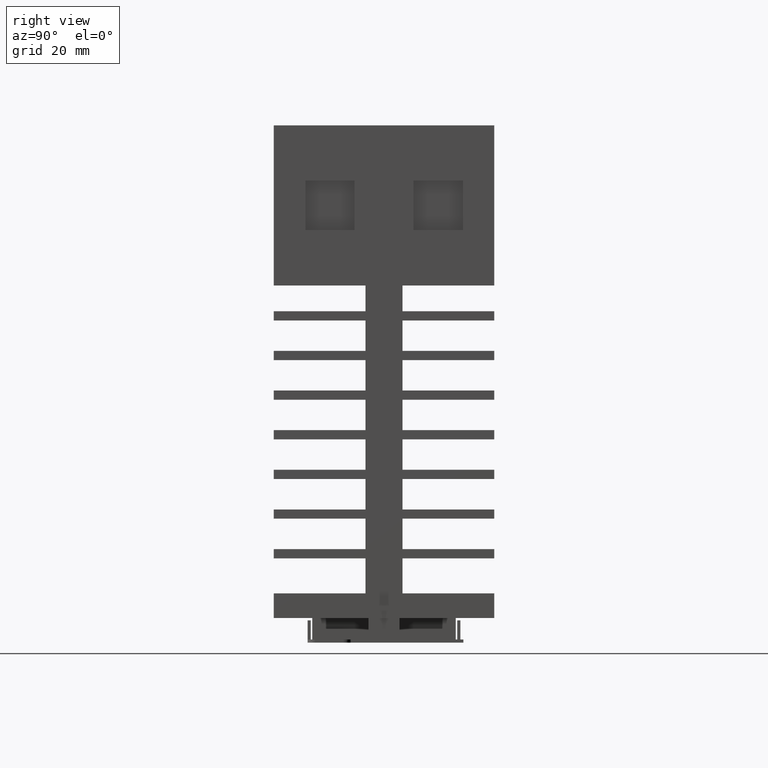
[diagram: clean part render]
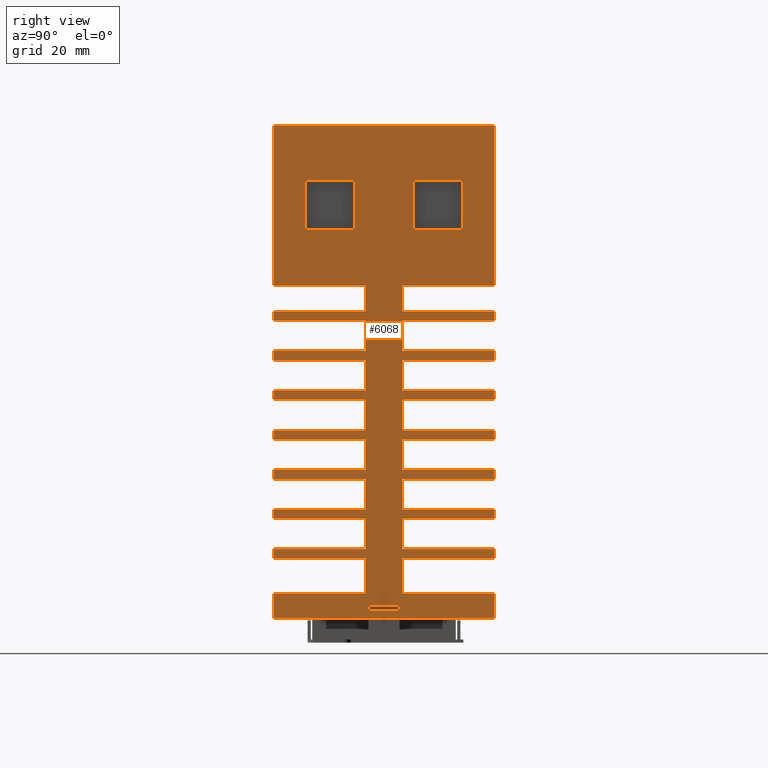
[diagram: same view with one face highlighted and labeled with its STEP entity id]
A machine part, right view. The second image highlights one B-rep face of the part: STEP entity #6068.
In plain terms, the highlighted planar face has unit normal (-1, 0, 0).
Its self-contained STEP definition (entity closure, byte-faithful):
#4 = LINE ( 'NONE', #165, #6877 ) ;
#5 = VECTOR ( 'NONE', #3483, 39.37007874015748100 ) ;
#6 = DIRECTION ( 'NONE',  ( 2.220446049250310400E-016, 1.000000000000000000, -2.220446049250310400E-016 ) ) ;
#12 = EDGE_CURVE ( 'EDGE297', #5225, #6635, #1954, .T. ) ;
#58 = DIRECTION ( 'NONE',  ( -4.930380657631320000E-032, -2.220446049250310400E-016, -1.000000000000000000 ) ) ;
#62 = FACE_BOUND ( 'NONE', #7245, .T. ) ;
#63 = VECTOR ( 'NONE', #5888, 39.37007874015748100 ) ;
#65 = DIRECTION ( 'NONE',  ( 2.220446049250310400E-016, 1.000000000000000000, 0.0000000000000000000 ) ) ;
#84 = DIRECTION ( 'NONE',  ( -2.449212707644750100E-016, -1.000000000000000000, 0.0000000000000000000 ) ) ;
#96 = VERTEX_POINT ( 'NONE', #388 ) ;
#112 = EDGE_CURVE ( 'EDGE343', #6485, #6278, #8281, .T. ) ;
#126 = EDGE_CURVE ( 'EDGE321', #7059, #7209, #7681, .T. ) ;
#141 = LINE ( 'NONE', #422, #5984 ) ;
#144 = CARTESIAN_POINT ( 'NONE',  ( 1.549999999999999800, -0.8950000000000000200, 2.331249999999999800 ) ) ;
#165 = CARTESIAN_POINT ( 'NONE',  ( 1.549999999999999800, -0.8950000000000000200, 0.7218750000000000400 ) ) ;
#208 = VECTOR ( 'NONE', #8085, 39.37007874015748100 ) ;
#248 = CARTESIAN_POINT ( 'NONE',  ( 1.549999999999999800, -0.8950000000000000200, 0.6843749999999999600 ) ) ;
#262 = CARTESIAN_POINT ( 'NONE',  ( 1.549999999999999800, 0.8950000000000000200, 2.690624999999999800 ) ) ;
#267 = FACE_BOUND ( 'NONE', #7262, .T. ) ;
#268 = LINE ( 'NONE', #5239, #63 ) ;
#317 = DIRECTION ( 'NONE',  ( 0.0000000000000000000, 0.0000000000000000000, 1.000000000000000000 ) ) ;
#354 = DIRECTION ( 'NONE',  ( -2.220446049250310400E-016, -1.000000000000000000, 4.440892098500630100E-016 ) ) ;
#370 = VECTOR ( 'NONE', #8495, 39.37007874015748100 ) ;
#388 = CARTESIAN_POINT ( 'NONE',  ( 1.549999999999999800, -0.1500000000000004100, 1.649999999999999900 ) ) ;
#392 = DIRECTION ( 'NONE',  ( -2.220446049250310400E-016, -1.000000000000000000, 2.220446049250310400E-016 ) ) ;
#422 = CARTESIAN_POINT ( 'NONE',  ( 1.549999999999999800, -1.110223024625157500E-016, 1.403125000000000200 ) ) ;
#444 = CARTESIAN_POINT ( 'NONE',  ( 1.549999999999999800, 0.0000000000000000000, 1.649999999999999900 ) ) ;
#456 = CARTESIAN_POINT ( 'NONE',  ( 1.549999999999999800, 0.1499999999999996100, 2.900000000000000400 ) ) ;
#459 = CARTESIAN_POINT ( 'NONE',  ( 1.549999999999999800, -2.220446049250311400E-016, 0.7593750000000000200 ) ) ;
#493 = CARTESIAN_POINT ( 'NONE',  ( 1.549999999999999800, 0.8950000000000000200, 0.7593750000000000200 ) ) ;
#500 = EDGE_CURVE ( 'EDGE292', #5004, #5181, #5117, .T. ) ;
#626 = VERTEX_POINT ( 'NONE', #3119 ) ;
#632 = LINE ( 'NONE', #7383, #3937 ) ;
#638 = CARTESIAN_POINT ( 'NONE',  ( 1.549999999999999800, -0.1500000000000004100, 1.725000000000000100 ) ) ;
#651 = ORIENTED_EDGE ( 'NONE', *, *, #5494, .F. ) ;
#664 = EDGE_LOOP ( 'NONE', ( #4163, #6910, #7869, #7721, #8346, #1660, #7446, #1229, #3607, #2897, #2572, #5443, #4913, #4035, #6808, #7676, #6307, #8243, #1549, #7714, #1174, #3519, #2775, #2521, #5317, #4819, #3988, #6693, #7483, #5534, #8167, #1444, #7604, #1014, #3386, #2589, #2427, #5130, #7049, #3787, #6563, #651, #5408, #8059, #1209, #8011, #940, #3177, #2453, #2315, #5033, #4591, #3677, #6433, #7169, #5307, #7979, #1021, #8338, #845, #3072, #2246, #2229, #4919, #4367, #3591, #6357, #6966 ) ) ;
#668 = VECTOR ( 'NONE', #7677, 39.37007874015748100 ) ;
#682 = EDGE_CURVE ( 'EDGE305', #6556, #5697, #2391, .T. ) ;
#725 = CARTESIAN_POINT ( 'NONE',  ( 1.549999999999999800, -0.2400000000000004100, 3.350000000000000100 ) ) ;
#738 = CARTESIAN_POINT ( 'NONE',  ( 1.549999999999999800, -0.1500000000000004100, 1.649999999999999900 ) ) ;
#745 = LINE ( 'NONE', #459, #4271 ) ;
#762 = CARTESIAN_POINT ( 'NONE',  ( 1.549999999999999800, -0.1500000000000004100, 1.649999999999999900 ) ) ;
#774 = CARTESIAN_POINT ( 'NONE',  ( 1.549999999999999800, -1.353036877416862300E-016, 0.2599999999999996200 ) ) ;
#784 = CARTESIAN_POINT ( 'NONE',  ( 1.549999999999999800, 0.0000000000000000000, 2.046875000000000400 ) ) ;
#816 = VERTEX_POINT ( 'NONE', #456 ) ;
#818 = CARTESIAN_POINT ( 'NONE',  ( 1.549999999999999800, 1.110223024625157500E-016, 2.368749999999999900 ) ) ;
#844 = CARTESIAN_POINT ( 'NONE',  ( 1.549999999999999800, -0.1250000000000004200, 0.2999999999999999900 ) ) ;
#845 = ORIENTED_EDGE ( 'NONE', *, *, #2277, .T. ) ;
#855 = DIRECTION ( 'NONE',  ( 0.0000000000000000000, 0.0000000000000000000, -1.000000000000000000 ) ) ;
#857 = VECTOR ( 'NONE', #84, 39.37007874015748100 ) ;
#883 = LINE ( 'NONE', #8288, #4198 ) ;
#914 = DIRECTION ( 'NONE',  ( 0.0000000000000000000, 0.0000000000000000000, -1.000000000000000000 ) ) ;
#923 = DIRECTION ( 'NONE',  ( 0.0000000000000000000, 0.0000000000000000000, -1.000000000000000000 ) ) ;
#940 = ORIENTED_EDGE ( 'NONE', *, *, #1565, .F. ) ;
#948 = CARTESIAN_POINT ( 'NONE',  ( 1.549999999999999800, -0.8950000000000000200, 1.081250000000000000 ) ) ;
#971 = CARTESIAN_POINT ( 'NONE',  ( 1.549999999999999800, 0.1499999999999996100, 1.649999999999999900 ) ) ;
#1001 = LINE ( 'NONE', #3204, #5707 ) ;
#1002 = VECTOR ( 'NONE', #3598, 39.37007874015748100 ) ;
#1014 = ORIENTED_EDGE ( 'NONE', *, *, #1499, .F. ) ;
#1021 = ORIENTED_EDGE ( 'NONE', *, *, #7549, .T. ) ;
#1030 = CARTESIAN_POINT ( 'NONE',  ( 1.549999999999999800, 0.1249999999999996300, 1.305625000000000000 ) ) ;
#1046 = EDGE_CURVE ( 'EDGE333', #6802, #7822, #1970, .T. ) ;
#1106 = DIRECTION ( 'NONE',  ( 2.220446049250310400E-016, 1.000000000000000000, -2.220446049250310400E-016 ) ) ;
#1108 = EDGE_CURVE ( 'EDGE348', #8406, #2356, #1126, .T. ) ;
#1110 = CARTESIAN_POINT ( 'NONE',  ( 1.549999999999999800, -0.8950000000000000200, 2.368749999999999900 ) ) ;
#1126 = LINE ( 'NONE', #7371, #4805 ) ;
#1130 = VECTOR ( 'NONE', #3567, 39.37007874015748100 ) ;
#1148 = CARTESIAN_POINT ( 'NONE',  ( 1.549999999999999800, 0.1249999999999996300, 0.2999999999999999900 ) ) ;
#1149 = VECTOR ( 'NONE', #2823, 39.37007874015748100 ) ;
#1162 = CARTESIAN_POINT ( 'NONE',  ( 1.549999999999999800, -0.8950000000000000200, 0.2999999999999999900 ) ) ;
#1167 = CARTESIAN_POINT ( 'NONE',  ( 1.549999999999999800, 0.0000000000000000000, 1.725000000000000100 ) ) ;
#1174 = ORIENTED_EDGE ( 'NONE', *, *, #8251, .F. ) ;
#1187 = LINE ( 'NONE', #2591, #4534 ) ;
#1192 = DIRECTION ( 'NONE',  ( 0.0000000000000000000, 0.0000000000000000000, -1.000000000000000000 ) ) ;
#1209 = ORIENTED_EDGE ( 'NONE', *, *, #3093, .F. ) ;
#1229 = ORIENTED_EDGE ( 'NONE', *, *, #12, .T. ) ;
#1270 = DIRECTION ( 'NONE',  ( 2.220446049250310400E-016, 1.000000000000000000, -4.440892098500630100E-016 ) ) ;
#1332 = ORIENTED_EDGE ( 'NONE', *, *, #2796, .T. ) ;
#1346 = VECTOR ( 'NONE', #6233, 39.37007874015748100 ) ;
#1360 = CARTESIAN_POINT ( 'NONE',  ( 1.549999999999999800, -0.1500000000000004100, 1.081250000000000000 ) ) ;
#1393 = CARTESIAN_POINT ( 'NONE',  ( 1.549999999999999800, -0.1500000000000004100, 0.4000000000000000200 ) ) ;
#1407 = VECTOR ( 'NONE', #2072, 39.37007874015748100 ) ;
#1416 = VECTOR ( 'NONE', #6170, 39.37007874015748100 ) ;
#1438 = EDGE_CURVE ( 'EDGE350', #5149, #7944, #8006, .T. ) ;
#1442 = DIRECTION ( 'NONE',  ( 0.0000000000000000000, 0.0000000000000000000, -1.000000000000000000 ) ) ;
#1444 = ORIENTED_EDGE ( 'NONE', *, *, #126, .F. ) ;
#1447 = VECTOR ( 'NONE', #1961, 39.37007874015748100 ) ;
#1454 = EDGE_CURVE ( 'EDGE246', #3379, #3501, #6825, .T. ) ;
#1483 = CARTESIAN_POINT ( 'NONE',  ( 1.549999999999999800, -3.796279696849370300E-016, 4.200000000000000200 ) ) ;
#1499 = EDGE_CURVE ( 'EDGE323', #7415, #8299, #5286, .T. ) ;
#1502 = CARTESIAN_POINT ( 'NONE',  ( 1.549999999999999800, -0.1500000000000004100, 1.006250000000000100 ) ) ;
#1507 = EDGE_CURVE ( 'EDGE316', #7930, #6228, #5180, .T. ) ;
#1517 = VECTOR ( 'NONE', #317, 39.37007874015748100 ) ;
#1541 = DIRECTION ( 'NONE',  ( -2.220446049250310400E-016, -1.000000000000000000, 2.220446049250310400E-016 ) ) ;
#1549 = ORIENTED_EDGE ( 'NONE', *, *, #7529, .F. ) ;
#1552 = VERTEX_POINT ( 'NONE', #6691 ) ;
#1565 = EDGE_CURVE ( 'EDGE336', #4721, #6555, #4307, .T. ) ;
#1575 = DIRECTION ( 'NONE',  ( 0.0000000000000000000, 0.0000000000000000000, -1.000000000000000000 ) ) ;
#1590 = CARTESIAN_POINT ( 'NONE',  ( 1.549999999999999800, -0.1500000000000004100, 0.6843749999999999600 ) ) ;
#1605 = LINE ( 'NONE', #8464, #1804 ) ;
#1606 = EDGE_CURVE ( 'EDGE354', #5551, #1799, #141, .T. ) ;
#1608 = CARTESIAN_POINT ( 'NONE',  ( 1.549999999999999800, -0.6400000000000000100, 3.350000000000000100 ) ) ;
#1615 = VECTOR ( 'NONE', #6805, 39.37007874015748100 ) ;
#1616 = CARTESIAN_POINT ( 'NONE',  ( 1.549999999999999800, -0.09375000000000040200, 0.2999999999999999900 ) ) ;
#1624 = LINE ( 'NONE', #1899, #3388 ) ;
#1633 = CARTESIAN_POINT ( 'NONE',  ( 1.549999999999999800, 1.110223024625157500E-016, 2.690624999999999800 ) ) ;
#1637 = LINE ( 'NONE', #5576, #3408 ) ;
#1639 = VECTOR ( 'NONE', #1709, 39.37007874015748100 ) ;
#1647 = VECTOR ( 'NONE', #3678, 39.37007874015748100 ) ;
#1649 = CARTESIAN_POINT ( 'NONE',  ( 1.549999999999999800, -0.8950000000000000200, 2.046875000000000400 ) ) ;
#1660 = ORIENTED_EDGE ( 'NONE', *, *, #2496, .T. ) ;
#1664 = CARTESIAN_POINT ( 'NONE',  ( 1.549999999999999800, 0.1499999999999996100, 2.293750000000000200 ) ) ;
#1676 = CARTESIAN_POINT ( 'NONE',  ( 1.549999999999999800, 0.1499999999999996100, 0.7593750000000000200 ) ) ;
#1702 = DIRECTION ( 'NONE',  ( 2.220446049250310400E-016, 1.000000000000000000, 0.0000000000000000000 ) ) ;
#1709 = DIRECTION ( 'NONE',  ( -2.220446049250310400E-016, -1.000000000000000000, 2.220446049250310400E-016 ) ) ;
#1762 = ORIENTED_EDGE ( 'NONE', *, *, #7561, .T. ) ;
#1776 = EDGE_CURVE ( 'EDGE339', #5071, #6039, #2525, .T. ) ;
#1788 = DIRECTION ( 'NONE',  ( 2.220446049250310400E-016, 1.000000000000000000, -2.220446049250310400E-016 ) ) ;
#1799 = VERTEX_POINT ( 'NONE', #7224 ) ;
#1804 = VECTOR ( 'NONE', #3864, 39.37007874015748100 ) ;
#1818 = DIRECTION ( 'NONE',  ( 0.0000000000000000000, 0.0000000000000000000, -1.000000000000000000 ) ) ;
#1819 = DIRECTION ( 'NONE',  ( 0.0000000000000000000, 0.0000000000000000000, -1.000000000000000000 ) ) ;
#1845 = CARTESIAN_POINT ( 'NONE',  ( 1.549999999999999800, 0.2399999999999996300, 3.750000000000000000 ) ) ;
#1849 = CARTESIAN_POINT ( 'NONE',  ( 1.549999999999999800, -0.1500000000000004100, 1.649999999999999900 ) ) ;
#1878 = VECTOR ( 'NONE', #8205, 39.37007874015748100 ) ;
#1899 = CARTESIAN_POINT ( 'NONE',  ( 1.549999999999999800, -0.2200000000000000000, 3.750000000000000000 ) ) ;
#1904 = VECTOR ( 'NONE', #7215, 39.37007874015748100 ) ;
#1907 = CARTESIAN_POINT ( 'NONE',  ( 1.549999999999999800, 0.8950000000000000200, 1.649999999999999900 ) ) ;
#1915 = VECTOR ( 'NONE', #5950, 39.37007874015748100 ) ;
#1917 = VECTOR ( 'NONE', #5088, 39.37007874015748100 ) ;
#1944 = VECTOR ( 'NONE', #5346, 39.37007874015748100 ) ;
#1946 = VECTOR ( 'NONE', #3738, 39.37007874015748100 ) ;
#1948 = LINE ( 'NONE', #2815, #5 ) ;
#1950 = DIRECTION ( 'NONE',  ( -2.449212707644750100E-016, -1.000000000000000000, 0.0000000000000000000 ) ) ;
#1954 = LINE ( 'NONE', #5266, #1944 ) ;
#1959 = CARTESIAN_POINT ( 'NONE',  ( 1.549999999999999800, -0.09375000000000040200, 0.2800000000000000300 ) ) ;
#1961 = DIRECTION ( 'NONE',  ( 2.449212707644750100E-016, 1.000000000000000000, 0.0000000000000000000 ) ) ;
#1970 = LINE ( 'NONE', #7791, #4917 ) ;
#1994 = EDGE_CURVE ( 'EDGE302', #6873, #4859, #3965, .T. ) ;
#2010 = VECTOR ( 'NONE', #8436, 39.37007874015748100 ) ;
#2051 = VERTEX_POINT ( 'NONE', #1608 ) ;
#2056 = CARTESIAN_POINT ( 'NONE',  ( 1.549999999999999800, 0.1499999999999996100, 1.649999999999999900 ) ) ;
#2072 = DIRECTION ( 'NONE',  ( -4.930380657631320000E-032, -2.220446049250310400E-016, -1.000000000000000000 ) ) ;
#2129 = CARTESIAN_POINT ( 'NONE',  ( 1.549999999999999800, -0.8950000000000000200, 1.043750000000000000 ) ) ;
#2144 = EDGE_CURVE ( 'EDGE344', #7058, #6278, #3358, .T. ) ;
#2145 = LINE ( 'NONE', #5568, #5722 ) ;
#2164 = LINE ( 'NONE', #8077, #7062 ) ;
#2165 = LINE ( 'NONE', #2129, #208 ) ;
#2166 = CARTESIAN_POINT ( 'NONE',  ( 1.549999999999999800, 0.8950000000000000200, 0.2999999999999999900 ) ) ;
#2169 = CARTESIAN_POINT ( 'NONE',  ( 1.549999999999999800, -2.220446049250311400E-016, 0.6843749999999999600 ) ) ;
#2220 = VERTEX_POINT ( 'NONE', #5352 ) ;
#2221 = EDGE_CURVE ( 'EDGE313', #7438, #8246, #6354, .T. ) ;
#2229 = ORIENTED_EDGE ( 'NONE', *, *, #5283, .F. ) ;
#2232 = VECTOR ( 'NONE', #1575, 39.37007874015748100 ) ;
#2239 = VERTEX_POINT ( 'NONE', #4720 ) ;
#2240 = CARTESIAN_POINT ( 'NONE',  ( 1.549999999999999800, -0.1500000000000004100, 1.649999999999999900 ) ) ;
#2246 = ORIENTED_EDGE ( 'NONE', *, *, #2592, .T. ) ;
#2254 = DIRECTION ( 'NONE',  ( -4.930380657631320000E-032, -2.220446049250310400E-016, -1.000000000000000000 ) ) ;
#2277 = EDGE_CURVE ( 'EDGE349', #8406, #7944, #4584, .T. ) ;
#2285 = CARTESIAN_POINT ( 'NONE',  ( 1.549999999999999800, -1.110223024625157500E-016, 1.081250000000000000 ) ) ;
#2301 = EDGE_CURVE ( 'EDGE300', #5625, #7803, #6166, .T. ) ;
#2303 = CARTESIAN_POINT ( 'NONE',  ( 1.549999999999999800, 0.8950000000000000200, 4.200000000000000200 ) ) ;
#2315 = ORIENTED_EDGE ( 'NONE', *, *, #1776, .T. ) ;
#2319 = EDGE_CURVE ( 'EDGE245', #2951, #2943, #2582, .T. ) ;
#2328 = LINE ( 'NONE', #3234, #370 ) ;
#2340 = VECTOR ( 'NONE', #6650, 39.37007874015748100 ) ;
#2356 = VERTEX_POINT ( 'NONE', #2726 ) ;
#2377 = EDGE_CURVE ( 'EDGE303', #3583, #6873, #632, .T. ) ;
#2391 = LINE ( 'NONE', #2450, #2468 ) ;
#2411 = CARTESIAN_POINT ( 'NONE',  ( 1.549999999999999800, 0.1499999999999996100, 2.690624999999999800 ) ) ;
#2421 = DIRECTION ( 'NONE',  ( -4.930380657631320000E-032, -2.220446049250310400E-016, -1.000000000000000000 ) ) ;
#2427 = ORIENTED_EDGE ( 'NONE', *, *, #3025, .F. ) ;
#2450 = CARTESIAN_POINT ( 'NONE',  ( 1.549999999999999800, 0.8950000000000000200, 0.7218750000000000400 ) ) ;
#2453 = ORIENTED_EDGE ( 'NONE', *, *, #7026, .F. ) ;
#2458 = VECTOR ( 'NONE', #1192, 39.37007874015748100 ) ;
#2461 = CARTESIAN_POINT ( 'NONE',  ( 1.549999999999999800, -0.2400000000000004100, 2.940624999999999800 ) ) ;
#2468 = VECTOR ( 'NONE', #2421, 39.37007874015748100 ) ;
#2478 = EDGE_CURVE ( 'EDGE225', #2239, #2220, #2164, .T. ) ;
#2496 = EDGE_CURVE ( 'EDGE295', #4868, #5604, #4, .T. ) ;
#2521 = ORIENTED_EDGE ( 'NONE', *, *, #2221, .F. ) ;
#2525 = LINE ( 'NONE', #7310, #3969 ) ;
#2554 = EDGE_CURVE ( 'EDGE357', #7853, #4882, #7746, .T. ) ;
#2560 = CARTESIAN_POINT ( 'NONE',  ( 1.549999999999999800, 0.1499999999999996100, 2.368749999999999900 ) ) ;
#2562 = VERTEX_POINT ( 'NONE', #7513 ) ;
#2563 = VECTOR ( 'NONE', #1818, 39.37007874015748100 ) ;
#2572 = ORIENTED_EDGE ( 'NONE', *, *, #2301, .F. ) ;
#2573 = CARTESIAN_POINT ( 'NONE',  ( 1.549999999999999800, -1.110223024625157500E-016, 1.403125000000000200 ) ) ;
#2582 = LINE ( 'NONE', #774, #4166 ) ;
#2589 = ORIENTED_EDGE ( 'NONE', *, *, #7601, .F. ) ;
#2591 = CARTESIAN_POINT ( 'NONE',  ( 1.549999999999999800, -0.1500000000000004100, 1.649999999999999900 ) ) ;
#2592 = EDGE_CURVE ( 'EDGE351', #5149, #6155, #1637, .T. ) ;
#2600 = CARTESIAN_POINT ( 'NONE',  ( 1.549999999999999800, 1.110223024625157500E-016, 2.368749999999999900 ) ) ;
#2630 = CARTESIAN_POINT ( 'NONE',  ( 1.549999999999999800, -0.8950000000000000200, 0.4000000000000000200 ) ) ;
#2673 = VERTEX_POINT ( 'NONE', #7703 ) ;
#2675 = LINE ( 'NONE', #2981, #4274 ) ;
#2684 = VECTOR ( 'NONE', #914, 39.37007874015748100 ) ;
#2692 = DIRECTION ( 'NONE',  ( 0.0000000000000000000, 0.0000000000000000000, -1.000000000000000000 ) ) ;
#2701 = DIRECTION ( 'NONE',  ( -2.220446049250310400E-016, -1.000000000000000000, 0.0000000000000000000 ) ) ;
#2706 = VERTEX_POINT ( 'NONE', #3061 ) ;
#2714 = EDGE_CURVE ( 'EDGE241', #2673, #3467, #8520, .T. ) ;
#2724 = ORIENTED_EDGE ( 'NONE', *, *, #7381, .T. ) ;
#2726 = CARTESIAN_POINT ( 'NONE',  ( 1.549999999999999800, -0.8950000000000000200, 1.971875000000000000 ) ) ;
#2738 = LINE ( 'NONE', #3970, #6312 ) ;
#2745 = VERTEX_POINT ( 'NONE', #1845 ) ;
#2747 = LINE ( 'NONE', #3843, #6135 ) ;
#2775 = ORIENTED_EDGE ( 'NONE', *, *, #6716, .F. ) ;
#2777 = VECTOR ( 'NONE', #58, 39.37007874015748100 ) ;
#2796 = EDGE_CURVE ( 'EDGE229', #3066, #1552, #1624, .T. ) ;
#2815 = CARTESIAN_POINT ( 'NONE',  ( 1.549999999999999800, 0.2200000000000000000, 3.750000000000000000 ) ) ;
#2819 = EDGE_CURVE ( 'EDGE237', #3264, #2951, #7440, .T. ) ;
#2821 = DIRECTION ( 'NONE',  ( 0.0000000000000000000, 0.0000000000000000000, -1.000000000000000000 ) ) ;
#2823 = DIRECTION ( 'NONE',  ( -2.220446049250310400E-016, -1.000000000000000000, 2.220446049250310400E-016 ) ) ;
#2833 = LINE ( 'NONE', #784, #4425 ) ;
#2843 = ORIENTED_EDGE ( 'NONE', *, *, #7548, .T. ) ;
#2856 = VERTEX_POINT ( 'NONE', #5334 ) ;
#2867 = VERTEX_POINT ( 'NONE', #725 ) ;
#2880 = LINE ( 'NONE', #7522, #8156 ) ;
#2890 = LINE ( 'NONE', #2240, #2684 ) ;
#2897 = ORIENTED_EDGE ( 'NONE', *, *, #4064, .T. ) ;
#2917 = CARTESIAN_POINT ( 'NONE',  ( 1.549999999999999800, -1.110223024625157500E-016, 1.328125000000000200 ) ) ;
#2941 = CARTESIAN_POINT ( 'NONE',  ( 1.549999999999999800, 1.110223024625157500E-016, 2.293750000000000200 ) ) ;
#2943 = VERTEX_POINT ( 'NONE', #6769 ) ;
#2951 = VERTEX_POINT ( 'NONE', #7397 ) ;
#2971 = CARTESIAN_POINT ( 'NONE',  ( 1.549999999999999800, 0.8950000000000000200, 1.725000000000000100 ) ) ;
#2981 = CARTESIAN_POINT ( 'NONE',  ( 1.549999999999999800, 1.110223024625157500E-016, 2.615625000000000500 ) ) ;
#3011 = LINE ( 'NONE', #762, #4837 ) ;
#3025 = EDGE_CURVE ( 'EDGE326', #7625, #6132, #3381, .T. ) ;
#3061 = CARTESIAN_POINT ( 'NONE',  ( 1.549999999999999800, -0.1500000000000004100, 2.615625000000000500 ) ) ;
#3066 = VERTEX_POINT ( 'NONE', #6141 ) ;
#3072 = ORIENTED_EDGE ( 'NONE', *, *, #1438, .F. ) ;
#3073 = CARTESIAN_POINT ( 'NONE',  ( 1.549999999999999800, 0.0000000000000000000, 2.046875000000000400 ) ) ;
#3084 = ORIENTED_EDGE ( 'NONE', *, *, #2478, .T. ) ;
#3085 = VERTEX_POINT ( 'NONE', #844 ) ;
#3093 = EDGE_CURVE ( 'EDGE334', #5787, #6802, #8423, .T. ) ;
#3119 = CARTESIAN_POINT ( 'NONE',  ( 1.549999999999999800, -0.1500000000000004100, 2.046875000000000400 ) ) ;
#3158 = CARTESIAN_POINT ( 'NONE',  ( 1.549999999999999800, -0.2200000000000000000, 3.350000000000000100 ) ) ;
#3159 = EDGE_CURVE ( 'EDGE301', #4859, #5625, #6528, .T. ) ;
#3162 = VECTOR ( 'NONE', #5649, 39.37007874015748100 ) ;
#3177 = ORIENTED_EDGE ( 'NONE', *, *, #4076, .T. ) ;
#3196 = DIRECTION ( 'NONE',  ( -2.220446049250310400E-016, -1.000000000000000000, 0.0000000000000000000 ) ) ;
#3204 = CARTESIAN_POINT ( 'NONE',  ( 1.549999999999999800, 1.110223024625157500E-016, 2.690624999999999800 ) ) ;
#3218 = VERTEX_POINT ( 'NONE', #6241 ) ;
#3234 = CARTESIAN_POINT ( 'NONE',  ( 1.549999999999999800, 0.6400000000000000100, 2.940624999999999800 ) ) ;
#3236 = LINE ( 'NONE', #1849, #6817 ) ;
#3264 = VERTEX_POINT ( 'NONE', #1616 ) ;
#3289 = CARTESIAN_POINT ( 'NONE',  ( 1.549999999999999800, 0.8950000000000000200, 0.4000000000000000200 ) ) ;
#3307 = VECTOR ( 'NONE', #4877, 39.37007874015748100 ) ;
#3358 = LINE ( 'NONE', #4640, #5442 ) ;
#3368 = VECTOR ( 'NONE', #3196, 39.37007874015748100 ) ;
#3371 = DIRECTION ( 'NONE',  ( -2.449212707644750100E-016, -1.000000000000000000, 0.0000000000000000000 ) ) ;
#3373 = CARTESIAN_POINT ( 'NONE',  ( 1.549999999999999800, 0.8950000000000000200, 2.900000000000000400 ) ) ;
#3374 = CARTESIAN_POINT ( 'NONE',  ( 1.549999999999999800, -3.796279696849370300E-016, 0.2000000000000000100 ) ) ;
#3379 = VERTEX_POINT ( 'NONE', #1148 ) ;
#3381 = LINE ( 'NONE', #818, #1615 ) ;
#3386 = ORIENTED_EDGE ( 'NONE', *, *, #5704, .F. ) ;
#3388 = VECTOR ( 'NONE', #5931, 39.37007874015748100 ) ;
#3390 = LINE ( 'NONE', #2056, #6956 ) ;
#3408 = VECTOR ( 'NONE', #8186, 39.37007874015748100 ) ;
#3444 = EDGE_CURVE ( 'EDGE290', #4565, #4882, #2738, .T. ) ;
#3453 = AXIS2_PLACEMENT_3D ( 'NONE', #7978, #4036, #65 ) ;
#3467 = VERTEX_POINT ( 'NONE', #7914 ) ;
#3483 = DIRECTION ( 'NONE',  ( 2.220446049250310400E-016, 1.000000000000000000, 0.0000000000000000000 ) ) ;
#3501 = VERTEX_POINT ( 'NONE', #7975 ) ;
#3519 = ORIENTED_EDGE ( 'NONE', *, *, #5672, .F. ) ;
#3537 = EDGE_CURVE ( 'EDGE322', #8299, #7059, #2833, .T. ) ;
#3546 = VECTOR ( 'NONE', #8214, 39.37007874015748100 ) ;
#3558 = FACE_BOUND ( 'NONE', #7068, .T. ) ;
#3559 = VECTOR ( 'NONE', #5177, 39.37007874015748100 ) ;
#3567 = DIRECTION ( 'NONE',  ( 2.220446049250310400E-016, 1.000000000000000000, -2.220446049250310400E-016 ) ) ;
#3583 = VERTEX_POINT ( 'NONE', #4786 ) ;
#3589 = CARTESIAN_POINT ( 'NONE',  ( 1.549999999999999800, 0.1499999999999996100, 1.649999999999999900 ) ) ;
#3591 = ORIENTED_EDGE ( 'NONE', *, *, #5332, .T. ) ;
#3598 = DIRECTION ( 'NONE',  ( 0.0000000000000000000, 0.0000000000000000000, 1.000000000000000000 ) ) ;
#3607 = ORIENTED_EDGE ( 'NONE', *, *, #6591, .F. ) ;
#3636 = LINE ( 'NONE', #2917, #1878 ) ;
#3657 = CARTESIAN_POINT ( 'NONE',  ( 1.549999999999999800, 0.8950000000000000200, 2.615625000000000500 ) ) ;
#3670 = LINE ( 'NONE', #7857, #1915 ) ;
#3677 = ORIENTED_EDGE ( 'NONE', *, *, #7099, .F. ) ;
#3678 = DIRECTION ( 'NONE',  ( 0.0000000000000000000, 0.0000000000000000000, 1.000000000000000000 ) ) ;
#3689 = VERTEX_POINT ( 'NONE', #4781 ) ;
#3701 = DIRECTION ( 'NONE',  ( 2.449212707644750100E-016, 1.000000000000000000, 0.0000000000000000000 ) ) ;
#3716 = CARTESIAN_POINT ( 'NONE',  ( 1.549999999999999800, 0.1499999999999996100, 0.4000000000000000200 ) ) ;
#3718 = ORIENTED_EDGE ( 'NONE', *, *, #5379, .T. ) ;
#3732 = VECTOR ( 'NONE', #3701, 39.37007874015748100 ) ;
#3738 = DIRECTION ( 'NONE',  ( 2.220446049250310400E-016, 1.000000000000000000, -2.220446049250310400E-016 ) ) ;
#3766 = LINE ( 'NONE', #7159, #3559 ) ;
#3786 = DIRECTION ( 'NONE',  ( -4.930380657631320000E-032, -2.220446049250310400E-016, -1.000000000000000000 ) ) ;
#3787 = ORIENTED_EDGE ( 'NONE', *, *, #5082, .F. ) ;
#3831 = CARTESIAN_POINT ( 'NONE',  ( 1.549999999999999800, -1.110223024625157500E-016, 1.006250000000000100 ) ) ;
#3843 = CARTESIAN_POINT ( 'NONE',  ( 1.549999999999999800, 0.1499999999999996100, 1.649999999999999900 ) ) ;
#3864 = DIRECTION ( 'NONE',  ( -9.860761315262649800E-032, -4.440892098500630100E-016, -1.000000000000000000 ) ) ;
#3901 = CARTESIAN_POINT ( 'NONE',  ( 1.549999999999999800, 0.8950000000000000200, 2.046875000000000400 ) ) ;
#3919 = DIRECTION ( 'NONE',  ( -2.220446049250310400E-016, -1.000000000000000000, 2.220446049250310400E-016 ) ) ;
#3924 = CARTESIAN_POINT ( 'NONE',  ( 1.549999999999999800, -3.796279696849370300E-016, 0.4000000000000000200 ) ) ;
#3936 = LINE ( 'NONE', #3073, #1946 ) ;
#3937 = VECTOR ( 'NONE', #1442, 39.37007874015748100 ) ;
#3957 = CARTESIAN_POINT ( 'NONE',  ( 1.549999999999999800, -1.110223024625157500E-016, 1.006250000000000100 ) ) ;
#3965 = LINE ( 'NONE', #3924, #3732 ) ;
#3969 = VECTOR ( 'NONE', #7203, 39.37007874015748100 ) ;
#3970 = CARTESIAN_POINT ( 'NONE',  ( 1.549999999999999800, -1.110223024625157500E-016, 1.081250000000000000 ) ) ;
#3981 = CARTESIAN_POINT ( 'NONE',  ( 1.549999999999999800, -0.1500000000000004100, 1.649999999999999900 ) ) ;
#3988 = ORIENTED_EDGE ( 'NONE', *, *, #1507, .F. ) ;
#3999 = PLANE ( 'NONE',  #3453 ) ;
#4013 = LINE ( 'NONE', #8147, #2232 ) ;
#4032 = CARTESIAN_POINT ( 'NONE',  ( 1.549999999999999800, 0.8950000000000000200, 1.043750000000000000 ) ) ;
#4035 = ORIENTED_EDGE ( 'NONE', *, *, #2377, .F. ) ;
#4036 = DIRECTION ( 'NONE',  ( -1.000000000000000000, 2.220446049250310400E-016, 0.0000000000000000000 ) ) ;
#4064 = EDGE_CURVE ( 'EDGE299', #5425, #7803, #4095, .T. ) ;
#4076 = EDGE_CURVE ( 'EDGE337', #4721, #3218, #3236, .T. ) ;
#4089 = LINE ( 'NONE', #3981, #7592 ) ;
#4095 = LINE ( 'NONE', #1162, #5883 ) ;
#4148 = DIRECTION ( 'NONE',  ( -2.220446049250310400E-016, -1.000000000000000000, 0.0000000000000000000 ) ) ;
#4163 = ORIENTED_EDGE ( 'NONE', *, *, #3444, .F. ) ;
#4166 = VECTOR ( 'NONE', #2701, 39.37007874015748100 ) ;
#4171 = EDGE_CURVE ( 'EDGE341', #2706, #3689, #4089, .T. ) ;
#4198 = VECTOR ( 'NONE', #1702, 39.37007874015748100 ) ;
#4212 = VECTOR ( 'NONE', #3371, 39.37007874015748100 ) ;
#4216 = CARTESIAN_POINT ( 'NONE',  ( 1.549999999999999800, -3.796279696849370300E-016, 2.900000000000000400 ) ) ;
#4219 = CARTESIAN_POINT ( 'NONE',  ( 1.549999999999999800, -0.8950000000000000200, 1.725000000000000100 ) ) ;
#4234 = EDGE_CURVE ( 'EDGE345', #7058, #626, #3011, .T. ) ;
#4244 = DIRECTION ( 'NONE',  ( 0.0000000000000000000, 0.0000000000000000000, -1.000000000000000000 ) ) ;
#4269 = ORIENTED_EDGE ( 'NONE', *, *, #2714, .F. ) ;
#4271 = VECTOR ( 'NONE', #1788, 39.37007874015748100 ) ;
#4274 = VECTOR ( 'NONE', #354, 39.37007874015748100 ) ;
#4285 = VECTOR ( 'NONE', #3919, 39.37007874015748100 ) ;
#4287 = VECTOR ( 'NONE', #8333, 39.37007874015748100 ) ;
#4307 = LINE ( 'NONE', #4216, #4212 ) ;
#4318 = CARTESIAN_POINT ( 'NONE',  ( 1.549999999999999800, 0.8950000000000000200, 0.6843749999999999600 ) ) ;
#4340 = VECTOR ( 'NONE', #5676, 39.37007874015748100 ) ;
#4342 = CARTESIAN_POINT ( 'NONE',  ( 1.549999999999999800, 0.1499999999999996100, 1.649999999999999900 ) ) ;
#4343 = CARTESIAN_POINT ( 'NONE',  ( 1.549999999999999800, -0.8950000000000000200, 4.200000000000000200 ) ) ;
#4367 = ORIENTED_EDGE ( 'NONE', *, *, #1606, .F. ) ;
#4368 = LINE ( 'NONE', #7667, #1647 ) ;
#4369 = VECTOR ( 'NONE', #7351, 39.37007874015748100 ) ;
#4399 = CARTESIAN_POINT ( 'NONE',  ( 1.549999999999999800, 0.0000000000000000000, 1.725000000000000100 ) ) ;
#4425 = VECTOR ( 'NONE', #6103, 39.37007874015748100 ) ;
#4449 = CARTESIAN_POINT ( 'NONE',  ( 1.549999999999999800, 0.1499999999999996100, 1.725000000000000100 ) ) ;
#4460 = EDGE_CURVE ( 'EDGE296', #5225, #5604, #8183, .T. ) ;
#4534 = VECTOR ( 'NONE', #4627, 39.37007874015748100 ) ;
#4552 = VECTOR ( 'NONE', #923, 39.37007874015748100 ) ;
#4565 = VERTEX_POINT ( 'NONE', #948 ) ;
#4572 = CARTESIAN_POINT ( 'NONE',  ( 1.549999999999999800, -0.1500000000000004100, 2.293750000000000200 ) ) ;
#4584 = LINE ( 'NONE', #738, #4369 ) ;
#4591 = ORIENTED_EDGE ( 'NONE', *, *, #4171, .T. ) ;
#4627 = DIRECTION ( 'NONE',  ( 0.0000000000000000000, 0.0000000000000000000, -1.000000000000000000 ) ) ;
#4640 = CARTESIAN_POINT ( 'NONE',  ( 1.549999999999999800, 1.110223024625157500E-016, 2.293750000000000200 ) ) ;
#4648 = EDGE_CURVE ( 'EDGE315', #6228, #6234, #7678, .T. ) ;
#4683 = CARTESIAN_POINT ( 'NONE',  ( 1.549999999999999800, -0.8950000000000000200, 0.2000000000000000100 ) ) ;
#4686 = EDGE_CURVE ( 'EDGE304', #5697, #3583, #6079, .T. ) ;
#4720 = CARTESIAN_POINT ( 'NONE',  ( 1.549999999999999800, 0.6400000000000000100, 3.350000000000000100 ) ) ;
#4721 = VERTEX_POINT ( 'NONE', #6464 ) ;
#4741 = DIRECTION ( 'NONE',  ( 0.0000000000000000000, 0.0000000000000000000, -1.000000000000000000 ) ) ;
#4776 = LINE ( 'NONE', #971, #4552 ) ;
#4781 = CARTESIAN_POINT ( 'NONE',  ( 1.549999999999999800, -0.1500000000000004100, 2.368749999999999900 ) ) ;
#4786 = CARTESIAN_POINT ( 'NONE',  ( 1.549999999999999800, 0.1499999999999996100, 0.6843749999999999600 ) ) ;
#4805 = VECTOR ( 'NONE', #7300, 39.37007874015748100 ) ;
#4819 = ORIENTED_EDGE ( 'NONE', *, *, #4648, .F. ) ;
#4837 = VECTOR ( 'NONE', #4741, 39.37007874015748100 ) ;
#4840 = VECTOR ( 'NONE', #6329, 39.37007874015748100 ) ;
#4859 = VERTEX_POINT ( 'NONE', #3289 ) ;
#4868 = VERTEX_POINT ( 'NONE', #6042 ) ;
#4877 = DIRECTION ( 'NONE',  ( -9.860761315262649800E-032, -4.440892098500630100E-016, -1.000000000000000000 ) ) ;
#4882 = VERTEX_POINT ( 'NONE', #1360 ) ;
#4887 = CARTESIAN_POINT ( 'NONE',  ( 1.549999999999999800, 0.8950000000000000200, 2.293750000000000200 ) ) ;
#4897 = CARTESIAN_POINT ( 'NONE',  ( 1.549999999999999800, -0.1500000000000004100, 1.649999999999999900 ) ) ;
#4909 = CARTESIAN_POINT ( 'NONE',  ( 1.549999999999999800, -1.353036877416862300E-016, 0.2599999999999996200 ) ) ;
#4913 = ORIENTED_EDGE ( 'NONE', *, *, #1994, .F. ) ;
#4917 = VECTOR ( 'NONE', #7711, 39.37007874015748100 ) ;
#4919 = ORIENTED_EDGE ( 'NONE', *, *, #7705, .T. ) ;
#4979 = CARTESIAN_POINT ( 'NONE',  ( 1.549999999999999800, -0.8950000000000000200, 3.000000000000000400 ) ) ;
#4994 = EDGE_CURVE ( 'EDGE291', #4565, #5181, #2165, .T. ) ;
#5004 = VERTEX_POINT ( 'NONE', #1502 ) ;
#5029 = DIRECTION ( 'NONE',  ( 2.220446049250310400E-016, 1.000000000000000000, -4.440892098500630100E-016 ) ) ;
#5033 = ORIENTED_EDGE ( 'NONE', *, *, #5240, .F. ) ;
#5040 = EDGE_CURVE ( 'EDGE221', #2745, #2562, #1948, .T. ) ;
#5052 = ORIENTED_EDGE ( 'NONE', *, *, #7054, .T. ) ;
#5063 = VECTOR ( 'NONE', #392, 39.37007874015748100 ) ;
#5071 = VERTEX_POINT ( 'NONE', #6189 ) ;
#5082 = EDGE_CURVE ( 'EDGE329', #7333, #5817, #5125, .T. ) ;
#5088 = DIRECTION ( 'NONE',  ( 2.220446049250310400E-016, 1.000000000000000000, -2.220446049250310400E-016 ) ) ;
#5114 = LINE ( 'NONE', #7759, #8534 ) ;
#5117 = LINE ( 'NONE', #3957, #4285 ) ;
#5125 = LINE ( 'NONE', #8110, #3307 ) ;
#5130 = ORIENTED_EDGE ( 'NONE', *, *, #6975, .F. ) ;
#5149 = VERTEX_POINT ( 'NONE', #4219 ) ;
#5170 = EDGE_CURVE ( 'EDGE243', #3501, #3467, #6671, .T. ) ;
#5177 = DIRECTION ( 'NONE',  ( 2.220446049250310400E-016, 1.000000000000000000, 0.0000000000000000000 ) ) ;
#5180 = LINE ( 'NONE', #444, #5063 ) ;
#5181 = VERTEX_POINT ( 'NONE', #5583 ) ;
#5194 = LINE ( 'NONE', #3158, #3368 ) ;
#5198 = DIRECTION ( 'NONE',  ( 0.0000000000000000000, 0.0000000000000000000, -1.000000000000000000 ) ) ;
#5210 = EDGE_CURVE ( 'EDGE307', #6053, #5837, #2880, .T. ) ;
#5225 = VERTEX_POINT ( 'NONE', #1590 ) ;
#5238 = LINE ( 'NONE', #7043, #1639 ) ;
#5239 = CARTESIAN_POINT ( 'NONE',  ( 1.549999999999999800, -0.8950000000000000200, 2.009375000000000400 ) ) ;
#5240 = EDGE_CURVE ( 'EDGE340', #2706, #6039, #2675, .T. ) ;
#5266 = CARTESIAN_POINT ( 'NONE',  ( 1.549999999999999800, -0.1500000000000004100, 1.649999999999999900 ) ) ;
#5283 = EDGE_CURVE ( 'EDGE352', #96, #6155, #5238, .T. ) ;
#5286 = LINE ( 'NONE', #8350, #3546 ) ;
#5307 = ORIENTED_EDGE ( 'NONE', *, *, #4234, .T. ) ;
#5317 = ORIENTED_EDGE ( 'NONE', *, *, #5998, .F. ) ;
#5332 = EDGE_CURVE ( 'EDGE355', #5551, #2856, #5114, .T. ) ;
#5334 = CARTESIAN_POINT ( 'NONE',  ( 1.549999999999999800, -0.8950000000000000200, 1.328125000000000200 ) ) ;
#5335 = ORIENTED_EDGE ( 'NONE', *, *, #5170, .T. ) ;
#5346 = DIRECTION ( 'NONE',  ( 0.0000000000000000000, 0.0000000000000000000, -1.000000000000000000 ) ) ;
#5352 = CARTESIAN_POINT ( 'NONE',  ( 1.549999999999999800, 0.2399999999999996300, 3.350000000000000100 ) ) ;
#5379 = EDGE_CURVE ( 'EDGE226', #1552, #2867, #7735, .T. ) ;
#5392 = VERTEX_POINT ( 'NONE', #5878 ) ;
#5404 = LINE ( 'NONE', #6544, #6733 ) ;
#5408 = ORIENTED_EDGE ( 'NONE', *, *, #7170, .F. ) ;
#5425 = VERTEX_POINT ( 'NONE', #2630 ) ;
#5442 = VECTOR ( 'NONE', #7920, 39.37007874015748100 ) ;
#5443 = ORIENTED_EDGE ( 'NONE', *, *, #3159, .F. ) ;
#5494 = EDGE_CURVE ( 'EDGE331', #816, #6412, #3390, .T. ) ;
#5506 = CARTESIAN_POINT ( 'NONE',  ( 1.549999999999999800, -0.8950000000000000200, 1.649999999999999900 ) ) ;
#5516 = VECTOR ( 'NONE', #1270, 39.37007874015748100 ) ;
#5518 = LINE ( 'NONE', #4399, #1917 ) ;
#5531 = ORIENTED_EDGE ( 'NONE', *, *, #5040, .T. ) ;
#5534 = ORIENTED_EDGE ( 'NONE', *, *, #5606, .F. ) ;
#5551 = VERTEX_POINT ( 'NONE', #6809 ) ;
#5568 = CARTESIAN_POINT ( 'NONE',  ( 1.549999999999999800, -1.110223024625157500E-016, 1.328125000000000200 ) ) ;
#5576 = CARTESIAN_POINT ( 'NONE',  ( 1.549999999999999800, -0.8950000000000000200, 1.687500000000000000 ) ) ;
#5583 = CARTESIAN_POINT ( 'NONE',  ( 1.549999999999999800, -0.8950000000000000200, 1.006250000000000100 ) ) ;
#5604 = VERTEX_POINT ( 'NONE', #248 ) ;
#5606 = EDGE_CURVE ( 'EDGE319', #7704, #6940, #4013, .T. ) ;
#5625 = VERTEX_POINT ( 'NONE', #6916 ) ;
#5637 = ORIENTED_EDGE ( 'NONE', *, *, #1454, .T. ) ;
#5649 = DIRECTION ( 'NONE',  ( 0.0000000000000000000, 0.0000000000000000000, -1.000000000000000000 ) ) ;
#5661 = EDGE_CURVE ( 'EDGE335', #5787, #6555, #8223, .T. ) ;
#5667 = CARTESIAN_POINT ( 'NONE',  ( 1.549999999999999800, 0.1499999999999996100, 1.403125000000000200 ) ) ;
#5672 = EDGE_CURVE ( 'EDGE311', #6300, #6251, #4776, .T. ) ;
#5676 = DIRECTION ( 'NONE',  ( -2.220446049250310400E-016, -1.000000000000000000, 4.440892098500630100E-016 ) ) ;
#5677 = CARTESIAN_POINT ( 'NONE',  ( 1.549999999999999800, 0.8950000000000000200, 1.328125000000000200 ) ) ;
#5688 = EDGE_CURVE ( 'EDGE231', #2051, #3066, #6325, .T. ) ;
#5697 = VERTEX_POINT ( 'NONE', #4318 ) ;
#5704 = EDGE_CURVE ( 'EDGE324', #6739, #7415, #6137, .T. ) ;
#5707 = VECTOR ( 'NONE', #5921, 39.37007874015748100 ) ;
#5720 = VERTEX_POINT ( 'NONE', #2971 ) ;
#5722 = VECTOR ( 'NONE', #1541, 39.37007874015748100 ) ;
#5726 = CARTESIAN_POINT ( 'NONE',  ( 1.549999999999999800, -0.1500000000000004100, 1.971875000000000000 ) ) ;
#5787 = VERTEX_POINT ( 'NONE', #4343 ) ;
#5817 = VERTEX_POINT ( 'NONE', #3657 ) ;
#5837 = VERTEX_POINT ( 'NONE', #1676 ) ;
#5846 = CARTESIAN_POINT ( 'NONE',  ( 1.549999999999999800, 0.09374999999999959800, 0.2800000000000000300 ) ) ;
#5878 = CARTESIAN_POINT ( 'NONE',  ( 1.549999999999999800, -0.1500000000000004100, 0.7593750000000000200 ) ) ;
#5880 = EDGE_CURVE ( 'EDGE318', #6940, #5720, #5518, .T. ) ;
#5883 = VECTOR ( 'NONE', #5198, 39.37007874015748100 ) ;
#5888 = DIRECTION ( 'NONE',  ( -4.930380657631320000E-032, -2.220446049250310400E-016, -1.000000000000000000 ) ) ;
#5896 = DIRECTION ( 'NONE',  ( 0.0000000000000000000, 0.0000000000000000000, -1.000000000000000000 ) ) ;
#5921 = DIRECTION ( 'NONE',  ( 2.220446049250310400E-016, 1.000000000000000000, -4.440892098500630100E-016 ) ) ;
#5931 = DIRECTION ( 'NONE',  ( 2.220446049250310400E-016, 1.000000000000000000, 0.0000000000000000000 ) ) ;
#5950 = DIRECTION ( 'NONE',  ( -2.220446049250310400E-016, -1.000000000000000000, 2.220446049250310400E-016 ) ) ;
#5978 = LINE ( 'NONE', #7036, #668 ) ;
#5984 = VECTOR ( 'NONE', #7255, 39.37007874015748100 ) ;
#5998 = EDGE_CURVE ( 'EDGE314', #6234, #7438, #7027, .T. ) ;
#6012 = CARTESIAN_POINT ( 'NONE',  ( 1.549999999999999800, 0.8950000000000000200, 1.971875000000000000 ) ) ;
#6035 = ORIENTED_EDGE ( 'NONE', *, *, #5688, .T. ) ;
#6039 = VERTEX_POINT ( 'NONE', #7239 ) ;
#6042 = CARTESIAN_POINT ( 'NONE',  ( 1.549999999999999800, -0.8950000000000000200, 0.7593750000000000200 ) ) ;
#6053 = VERTEX_POINT ( 'NONE', #6676 ) ;
#6068 = ADVANCED_FACE ( 'FACE115', ( #3558, #7110, #62, #267, #6933 ), #3999, .F. ) ;
#6079 = LINE ( 'NONE', #7057, #4287 ) ;
#6103 = DIRECTION ( 'NONE',  ( 2.220446049250310400E-016, 1.000000000000000000, -2.220446049250310400E-016 ) ) ;
#6106 = CARTESIAN_POINT ( 'NONE',  ( 1.549999999999999800, 0.8950000000000000200, 2.368749999999999900 ) ) ;
#6132 = VERTEX_POINT ( 'NONE', #6106 ) ;
#6135 = VECTOR ( 'NONE', #5896, 39.37007874015748100 ) ;
#6137 = LINE ( 'NONE', #2941, #4340 ) ;
#6141 = CARTESIAN_POINT ( 'NONE',  ( 1.549999999999999800, -0.6400000000000000100, 3.750000000000000000 ) ) ;
#6155 = VERTEX_POINT ( 'NONE', #5506 ) ;
#6166 = LINE ( 'NONE', #3374, #857 ) ;
#6170 = DIRECTION ( 'NONE',  ( 2.449212707644750100E-016, 1.000000000000000000, 0.0000000000000000000 ) ) ;
#6180 = DIRECTION ( 'NONE',  ( -4.930380657631320000E-032, -2.220446049250310400E-016, -1.000000000000000000 ) ) ;
#6189 = CARTESIAN_POINT ( 'NONE',  ( 1.549999999999999800, -0.8950000000000000200, 2.690624999999999800 ) ) ;
#6200 = EDGE_CURVE ( 'EDGE306', #5837, #6556, #6263, .T. ) ;
#6209 = EDGE_CURVE ( 'EDGE293', #5004, #5392, #2890, .T. ) ;
#6228 = VERTEX_POINT ( 'NONE', #3589 ) ;
#6233 = DIRECTION ( 'NONE',  ( -2.220446049250310400E-016, -1.000000000000000000, 0.0000000000000000000 ) ) ;
#6234 = VERTEX_POINT ( 'NONE', #5667 ) ;
#6241 = CARTESIAN_POINT ( 'NONE',  ( 1.549999999999999800, -0.1500000000000004100, 2.690624999999999800 ) ) ;
#6251 = VERTEX_POINT ( 'NONE', #6318 ) ;
#6260 = EDGE_CURVE ( 'EDGE330', #6412, #7333, #7756, .T. ) ;
#6263 = LINE ( 'NONE', #7553, #1130 ) ;
#6273 = EDGE_CURVE ( 'EDGE234', #2943, #3085, #4368, .T. ) ;
#6278 = VERTEX_POINT ( 'NONE', #7028 ) ;
#6296 = VECTOR ( 'NONE', #1106, 39.37007874015748100 ) ;
#6300 = VERTEX_POINT ( 'NONE', #7003 ) ;
#6301 = CARTESIAN_POINT ( 'NONE',  ( 1.549999999999999800, -0.6400000000000000100, 2.940624999999999800 ) ) ;
#6305 = VECTOR ( 'NONE', #855, 39.37007874015748100 ) ;
#6307 = ORIENTED_EDGE ( 'NONE', *, *, #6200, .F. ) ;
#6312 = VECTOR ( 'NONE', #6, 39.37007874015748100 ) ;
#6318 = CARTESIAN_POINT ( 'NONE',  ( 1.549999999999999800, 0.1499999999999996100, 1.081250000000000000 ) ) ;
#6325 = LINE ( 'NONE', #6301, #1002 ) ;
#6326 = DIRECTION ( 'NONE',  ( 0.0000000000000000000, 0.0000000000000000000, -1.000000000000000000 ) ) ;
#6329 = DIRECTION ( 'NONE',  ( 2.220446049250310400E-016, 1.000000000000000000, -2.220446049250310400E-016 ) ) ;
#6354 = LINE ( 'NONE', #7289, #2777 ) ;
#6357 = ORIENTED_EDGE ( 'NONE', *, *, #8194, .F. ) ;
#6411 = EDGE_CURVE ( 'EDGE346', #8255, #626, #3936, .T. ) ;
#6412 = VERTEX_POINT ( 'NONE', #2411 ) ;
#6433 = ORIENTED_EDGE ( 'NONE', *, *, #112, .T. ) ;
#6464 = CARTESIAN_POINT ( 'NONE',  ( 1.549999999999999800, -0.1500000000000004100, 2.900000000000000400 ) ) ;
#6485 = VERTEX_POINT ( 'NONE', #1110 ) ;
#6528 = LINE ( 'NONE', #2166, #8027 ) ;
#6532 = EDGE_CURVE ( 'EDGE294', #4868, #5392, #745, .T. ) ;
#6544 = CARTESIAN_POINT ( 'NONE',  ( 1.549999999999999800, 0.8950000000000000200, 1.687500000000000000 ) ) ;
#6555 = VERTEX_POINT ( 'NONE', #8393 ) ;
#6556 = VERTEX_POINT ( 'NONE', #493 ) ;
#6563 = ORIENTED_EDGE ( 'NONE', *, *, #6260, .F. ) ;
#6591 = EDGE_CURVE ( 'EDGE298', #5425, #6635, #8248, .T. ) ;
#6596 = LINE ( 'NONE', #2285, #4840 ) ;
#6604 = CARTESIAN_POINT ( 'NONE',  ( 1.549999999999999800, 0.1499999999999996100, 1.971875000000000000 ) ) ;
#6633 = LINE ( 'NONE', #7585, #1517 ) ;
#6635 = VERTEX_POINT ( 'NONE', #1393 ) ;
#6636 = CARTESIAN_POINT ( 'NONE',  ( 1.549999999999999800, 0.8950000000000000200, 1.081250000000000000 ) ) ;
#6650 = DIRECTION ( 'NONE',  ( 0.0000000000000000000, 0.0000000000000000000, -1.000000000000000000 ) ) ;
#6653 = CARTESIAN_POINT ( 'NONE',  ( 1.549999999999999800, -3.796279696849370300E-016, 0.4000000000000000200 ) ) ;
#6671 = LINE ( 'NONE', #4909, #1346 ) ;
#6676 = CARTESIAN_POINT ( 'NONE',  ( 1.549999999999999800, 0.1499999999999996100, 1.006250000000000100 ) ) ;
#6691 = CARTESIAN_POINT ( 'NONE',  ( 1.549999999999999800, -0.2400000000000004100, 3.750000000000000000 ) ) ;
#6693 = ORIENTED_EDGE ( 'NONE', *, *, #7608, .F. ) ;
#6716 = EDGE_CURVE ( 'EDGE312', #8246, #6300, #2145, .T. ) ;
#6733 = VECTOR ( 'NONE', #7820, 39.37007874015748100 ) ;
#6739 = VERTEX_POINT ( 'NONE', #4887 ) ;
#6751 = CARTESIAN_POINT ( 'NONE',  ( 1.549999999999999800, -0.1500000000000004100, 1.328125000000000200 ) ) ;
#6769 = CARTESIAN_POINT ( 'NONE',  ( 1.549999999999999800, -0.1250000000000004200, 0.2600000000000000100 ) ) ;
#6780 = CARTESIAN_POINT ( 'NONE',  ( 1.549999999999999800, 0.1499999999999996100, 2.615625000000000500 ) ) ;
#6802 = VERTEX_POINT ( 'NONE', #2303 ) ;
#6805 = DIRECTION ( 'NONE',  ( 2.220446049250310400E-016, 1.000000000000000000, -4.440892098500630100E-016 ) ) ;
#6808 = ORIENTED_EDGE ( 'NONE', *, *, #4686, .F. ) ;
#6809 = CARTESIAN_POINT ( 'NONE',  ( 1.549999999999999800, -0.8950000000000000200, 1.403125000000000200 ) ) ;
#6817 = VECTOR ( 'NONE', #1819, 39.37007874015748100 ) ;
#6825 = LINE ( 'NONE', #1030, #6305 ) ;
#6842 = VECTOR ( 'NONE', #1950, 39.37007874015748100 ) ;
#6846 = ORIENTED_EDGE ( 'NONE', *, *, #6273, .T. ) ;
#6873 = VERTEX_POINT ( 'NONE', #3716 ) ;
#6877 = VECTOR ( 'NONE', #6180, 39.37007874015748100 ) ;
#6894 = DIRECTION ( 'NONE',  ( 0.0000000000000000000, 0.0000000000000000000, -1.000000000000000000 ) ) ;
#6910 = ORIENTED_EDGE ( 'NONE', *, *, #4994, .T. ) ;
#6916 = CARTESIAN_POINT ( 'NONE',  ( 1.549999999999999800, 0.8950000000000000200, 0.2000000000000000100 ) ) ;
#6933 = FACE_OUTER_BOUND ( 'NONE', #664, .T. ) ;
#6940 = VERTEX_POINT ( 'NONE', #4449 ) ;
#6956 = VECTOR ( 'NONE', #2692, 39.37007874015748100 ) ;
#6966 = ORIENTED_EDGE ( 'NONE', *, *, #2554, .T. ) ;
#6975 = EDGE_CURVE ( 'EDGE327', #8024, #7625, #2747, .T. ) ;
#6977 = VECTOR ( 'NONE', #5029, 39.37007874015748100 ) ;
#6987 = ORIENTED_EDGE ( 'NONE', *, *, #2819, .T. ) ;
#7003 = CARTESIAN_POINT ( 'NONE',  ( 1.549999999999999800, 0.1499999999999996100, 1.328125000000000200 ) ) ;
#7026 = EDGE_CURVE ( 'EDGE338', #5071, #3218, #1001, .T. ) ;
#7027 = LINE ( 'NONE', #2573, #1904 ) ;
#7028 = CARTESIAN_POINT ( 'NONE',  ( 1.549999999999999800, -0.8950000000000000200, 2.293750000000000200 ) ) ;
#7030 = LINE ( 'NONE', #7884, #6842 ) ;
#7036 = CARTESIAN_POINT ( 'NONE',  ( 1.549999999999999800, 1.110223024625157500E-016, 2.615625000000000500 ) ) ;
#7043 = CARTESIAN_POINT ( 'NONE',  ( 1.549999999999999800, 0.0000000000000000000, 1.649999999999999900 ) ) ;
#7049 = ORIENTED_EDGE ( 'NONE', *, *, #8398, .F. ) ;
#7054 = EDGE_CURVE ( 'EDGE218', #2562, #2239, #2328, .T. ) ;
#7057 = CARTESIAN_POINT ( 'NONE',  ( 1.549999999999999800, -2.220446049250311400E-016, 0.6843749999999999600 ) ) ;
#7058 = VERTEX_POINT ( 'NONE', #4572 ) ;
#7059 = VERTEX_POINT ( 'NONE', #3901 ) ;
#7062 = VECTOR ( 'NONE', #4148, 39.37007874015748100 ) ;
#7068 = EDGE_LOOP ( 'NONE', ( #2843, #5637, #5335, #4269 ) ) ;
#7073 = EDGE_CURVE ( 'EDGE320', #7209, #7704, #3670, .T. ) ;
#7084 = EDGE_LOOP ( 'NONE', ( #6987, #8068, #6846, #8443 ) ) ;
#7099 = EDGE_CURVE ( 'EDGE342', #6485, #3689, #7217, .T. ) ;
#7110 = FACE_BOUND ( 'NONE', #7084, .T. ) ;
#7111 = LINE ( 'NONE', #3831, #2010 ) ;
#7133 = VERTEX_POINT ( 'NONE', #6636 ) ;
#7159 = CARTESIAN_POINT ( 'NONE',  ( 1.549999999999999800, -1.353036877416862300E-016, 0.2999999999999996600 ) ) ;
#7169 = ORIENTED_EDGE ( 'NONE', *, *, #2144, .F. ) ;
#7170 = EDGE_CURVE ( 'EDGE332', #7822, #816, #7030, .T. ) ;
#7203 = DIRECTION ( 'NONE',  ( -9.860761315262649800E-032, -4.440892098500630100E-016, -1.000000000000000000 ) ) ;
#7209 = VERTEX_POINT ( 'NONE', #6012 ) ;
#7215 = DIRECTION ( 'NONE',  ( 2.220446049250310400E-016, 1.000000000000000000, -2.220446049250310400E-016 ) ) ;
#7217 = LINE ( 'NONE', #2600, #5516 ) ;
#7224 = CARTESIAN_POINT ( 'NONE',  ( 1.549999999999999800, -0.1500000000000004100, 1.403125000000000200 ) ) ;
#7239 = CARTESIAN_POINT ( 'NONE',  ( 1.549999999999999800, -0.8950000000000000200, 2.615625000000000500 ) ) ;
#7245 = EDGE_LOOP ( 'NONE', ( #1762, #6035, #1332, #3718 ) ) ;
#7254 = EDGE_CURVE ( 'EDGE309', #7133, #7830, #8415, .T. ) ;
#7255 = DIRECTION ( 'NONE',  ( 2.220446049250310400E-016, 1.000000000000000000, -2.220446049250310400E-016 ) ) ;
#7262 = EDGE_LOOP ( 'NONE', ( #3084, #2724, #5531, #5052 ) ) ;
#7289 = CARTESIAN_POINT ( 'NONE',  ( 1.549999999999999800, 0.8950000000000000200, 1.365625000000000100 ) ) ;
#7300 = DIRECTION ( 'NONE',  ( -2.220446049250310400E-016, -1.000000000000000000, 2.220446049250310400E-016 ) ) ;
#7310 = CARTESIAN_POINT ( 'NONE',  ( 1.549999999999999800, -0.8950000000000000200, 2.653125000000000200 ) ) ;
#7313 = CARTESIAN_POINT ( 'NONE',  ( 1.549999999999999800, 0.8950000000000000200, 1.006250000000000100 ) ) ;
#7333 = VERTEX_POINT ( 'NONE', #262 ) ;
#7351 = DIRECTION ( 'NONE',  ( 0.0000000000000000000, 0.0000000000000000000, -1.000000000000000000 ) ) ;
#7371 = CARTESIAN_POINT ( 'NONE',  ( 1.549999999999999800, 0.0000000000000000000, 1.971875000000000000 ) ) ;
#7381 = EDGE_CURVE ( 'EDGE223', #2220, #2745, #6633, .T. ) ;
#7383 = CARTESIAN_POINT ( 'NONE',  ( 1.549999999999999800, 0.1499999999999996100, 1.649999999999999900 ) ) ;
#7397 = CARTESIAN_POINT ( 'NONE',  ( 1.549999999999999800, -0.09375000000000040200, 0.2600000000000000100 ) ) ;
#7415 = VERTEX_POINT ( 'NONE', #1664 ) ;
#7438 = VERTEX_POINT ( 'NONE', #8296 ) ;
#7440 = LINE ( 'NONE', #1959, #2340 ) ;
#7446 = ORIENTED_EDGE ( 'NONE', *, *, #4460, .F. ) ;
#7479 = VECTOR ( 'NONE', #6326, 39.37007874015748100 ) ;
#7483 = ORIENTED_EDGE ( 'NONE', *, *, #5880, .F. ) ;
#7513 = CARTESIAN_POINT ( 'NONE',  ( 1.549999999999999800, 0.6400000000000000100, 3.750000000000000000 ) ) ;
#7522 = CARTESIAN_POINT ( 'NONE',  ( 1.549999999999999800, 0.1499999999999996100, 1.649999999999999900 ) ) ;
#7529 = EDGE_CURVE ( 'EDGE308', #7830, #6053, #7111, .T. ) ;
#7548 = EDGE_CURVE ( 'EDGE249', #2673, #3379, #3766, .T. ) ;
#7549 = EDGE_CURVE ( 'EDGE347', #8255, #2356, #268, .T. ) ;
#7553 = CARTESIAN_POINT ( 'NONE',  ( 1.549999999999999800, -2.220446049250311400E-016, 0.7593750000000000200 ) ) ;
#7560 = VECTOR ( 'NONE', #6894, 39.37007874015748100 ) ;
#7561 = EDGE_CURVE ( 'EDGE233', #2867, #2051, #5194, .T. ) ;
#7585 = CARTESIAN_POINT ( 'NONE',  ( 1.549999999999999800, 0.2399999999999996300, 2.940624999999999800 ) ) ;
#7592 = VECTOR ( 'NONE', #7896, 39.37007874015748100 ) ;
#7601 = EDGE_CURVE ( 'EDGE325', #6132, #6739, #1605, .T. ) ;
#7604 = ORIENTED_EDGE ( 'NONE', *, *, #3537, .F. ) ;
#7608 = EDGE_CURVE ( 'EDGE317', #5720, #7930, #5404, .T. ) ;
#7625 = VERTEX_POINT ( 'NONE', #2560 ) ;
#7667 = CARTESIAN_POINT ( 'NONE',  ( 1.549999999999999800, -0.1250000000000004200, 1.305625000000000000 ) ) ;
#7676 = ORIENTED_EDGE ( 'NONE', *, *, #682, .F. ) ;
#7677 = DIRECTION ( 'NONE',  ( -2.220446049250310400E-016, -1.000000000000000000, 4.440892098500630100E-016 ) ) ;
#7678 = LINE ( 'NONE', #4342, #7479 ) ;
#7681 = LINE ( 'NONE', #7762, #7766 ) ;
#7703 = CARTESIAN_POINT ( 'NONE',  ( 1.549999999999999800, 0.09374999999999959800, 0.2999999999999999900 ) ) ;
#7704 = VERTEX_POINT ( 'NONE', #6604 ) ;
#7705 = EDGE_CURVE ( 'EDGE353', #96, #1799, #1187, .T. ) ;
#7711 = DIRECTION ( 'NONE',  ( 0.0000000000000000000, 0.0000000000000000000, -1.000000000000000000 ) ) ;
#7714 = ORIENTED_EDGE ( 'NONE', *, *, #7254, .F. ) ;
#7721 = ORIENTED_EDGE ( 'NONE', *, *, #6209, .T. ) ;
#7735 = LINE ( 'NONE', #2461, #2458 ) ;
#7746 = LINE ( 'NONE', #4897, #7560 ) ;
#7756 = LINE ( 'NONE', #1633, #6977 ) ;
#7759 = CARTESIAN_POINT ( 'NONE',  ( 1.549999999999999800, -0.8950000000000000200, 1.365625000000000100 ) ) ;
#7762 = CARTESIAN_POINT ( 'NONE',  ( 1.549999999999999800, 0.8950000000000000200, 2.009375000000000400 ) ) ;
#7766 = VECTOR ( 'NONE', #2254, 39.37007874015748100 ) ;
#7791 = CARTESIAN_POINT ( 'NONE',  ( 1.549999999999999800, 0.8950000000000000200, 3.649999999999999900 ) ) ;
#7803 = VERTEX_POINT ( 'NONE', #4683 ) ;
#7820 = DIRECTION ( 'NONE',  ( -4.930380657631320000E-032, -2.220446049250310400E-016, -1.000000000000000000 ) ) ;
#7822 = VERTEX_POINT ( 'NONE', #3373 ) ;
#7830 = VERTEX_POINT ( 'NONE', #7313 ) ;
#7853 = VERTEX_POINT ( 'NONE', #6751 ) ;
#7857 = CARTESIAN_POINT ( 'NONE',  ( 1.549999999999999800, 0.0000000000000000000, 1.971875000000000000 ) ) ;
#7869 = ORIENTED_EDGE ( 'NONE', *, *, #500, .F. ) ;
#7884 = CARTESIAN_POINT ( 'NONE',  ( 1.549999999999999800, -3.796279696849370300E-016, 2.900000000000000400 ) ) ;
#7896 = DIRECTION ( 'NONE',  ( 0.0000000000000000000, 0.0000000000000000000, -1.000000000000000000 ) ) ;
#7914 = CARTESIAN_POINT ( 'NONE',  ( 1.549999999999999800, 0.09374999999999959800, 0.2600000000000000100 ) ) ;
#7920 = DIRECTION ( 'NONE',  ( -2.220446049250310400E-016, -1.000000000000000000, 4.440892098500630100E-016 ) ) ;
#7930 = VERTEX_POINT ( 'NONE', #1907 ) ;
#7944 = VERTEX_POINT ( 'NONE', #638 ) ;
#7975 = CARTESIAN_POINT ( 'NONE',  ( 1.549999999999999800, 0.1249999999999996300, 0.2600000000000000100 ) ) ;
#7978 = CARTESIAN_POINT ( 'NONE',  ( 1.549999999999999800, 1.110223024625157500E-016, 2.331249999999999800 ) ) ;
#7979 = ORIENTED_EDGE ( 'NONE', *, *, #6411, .F. ) ;
#8006 = LINE ( 'NONE', #1167, #6296 ) ;
#8011 = ORIENTED_EDGE ( 'NONE', *, *, #5661, .T. ) ;
#8024 = VERTEX_POINT ( 'NONE', #6780 ) ;
#8027 = VECTOR ( 'NONE', #2821, 39.37007874015748100 ) ;
#8059 = ORIENTED_EDGE ( 'NONE', *, *, #1046, .F. ) ;
#8068 = ORIENTED_EDGE ( 'NONE', *, *, #2319, .T. ) ;
#8077 = CARTESIAN_POINT ( 'NONE',  ( 1.549999999999999800, 0.2200000000000000000, 3.350000000000000100 ) ) ;
#8085 = DIRECTION ( 'NONE',  ( -4.930380657631320000E-032, -2.220446049250310400E-016, -1.000000000000000000 ) ) ;
#8110 = CARTESIAN_POINT ( 'NONE',  ( 1.549999999999999800, 0.8950000000000000200, 2.653125000000000200 ) ) ;
#8147 = CARTESIAN_POINT ( 'NONE',  ( 1.549999999999999800, 0.1499999999999996100, 1.649999999999999900 ) ) ;
#8156 = VECTOR ( 'NONE', #4244, 39.37007874015748100 ) ;
#8167 = ORIENTED_EDGE ( 'NONE', *, *, #7073, .F. ) ;
#8183 = LINE ( 'NONE', #2169, #1149 ) ;
#8186 = DIRECTION ( 'NONE',  ( -4.930380657631320000E-032, -2.220446049250310400E-016, -1.000000000000000000 ) ) ;
#8194 = EDGE_CURVE ( 'EDGE356', #7853, #2856, #3636, .T. ) ;
#8205 = DIRECTION ( 'NONE',  ( -2.220446049250310400E-016, -1.000000000000000000, 2.220446049250310400E-016 ) ) ;
#8214 = DIRECTION ( 'NONE',  ( 0.0000000000000000000, 0.0000000000000000000, -1.000000000000000000 ) ) ;
#8223 = LINE ( 'NONE', #4979, #3162 ) ;
#8243 = ORIENTED_EDGE ( 'NONE', *, *, #5210, .F. ) ;
#8246 = VERTEX_POINT ( 'NONE', #5677 ) ;
#8248 = LINE ( 'NONE', #6653, #1447 ) ;
#8251 = EDGE_CURVE ( 'EDGE310', #6251, #7133, #6596, .T. ) ;
#8255 = VERTEX_POINT ( 'NONE', #1649 ) ;
#8261 = CARTESIAN_POINT ( 'NONE',  ( 1.549999999999999800, 0.1499999999999996100, 2.046875000000000400 ) ) ;
#8281 = LINE ( 'NONE', #144, #8358 ) ;
#8288 = CARTESIAN_POINT ( 'NONE',  ( 1.549999999999999800, -1.353036877416862300E-016, 0.2999999999999996600 ) ) ;
#8296 = CARTESIAN_POINT ( 'NONE',  ( 1.549999999999999800, 0.8950000000000000200, 1.403125000000000200 ) ) ;
#8299 = VERTEX_POINT ( 'NONE', #8261 ) ;
#8333 = DIRECTION ( 'NONE',  ( -2.220446049250310400E-016, -1.000000000000000000, 2.220446049250310400E-016 ) ) ;
#8338 = ORIENTED_EDGE ( 'NONE', *, *, #1108, .F. ) ;
#8346 = ORIENTED_EDGE ( 'NONE', *, *, #6532, .F. ) ;
#8350 = CARTESIAN_POINT ( 'NONE',  ( 1.549999999999999800, 0.1499999999999996100, 1.649999999999999900 ) ) ;
#8358 = VECTOR ( 'NONE', #8500, 39.37007874015748100 ) ;
#8393 = CARTESIAN_POINT ( 'NONE',  ( 1.549999999999999800, -0.8950000000000000200, 2.900000000000000400 ) ) ;
#8397 = EDGE_CURVE ( 'EDGE248', #3085, #3264, #883, .T. ) ;
#8398 = EDGE_CURVE ( 'EDGE328', #5817, #8024, #5978, .T. ) ;
#8406 = VERTEX_POINT ( 'NONE', #5726 ) ;
#8415 = LINE ( 'NONE', #4032, #1407 ) ;
#8423 = LINE ( 'NONE', #1483, #1416 ) ;
#8436 = DIRECTION ( 'NONE',  ( -2.220446049250310400E-016, -1.000000000000000000, 2.220446049250310400E-016 ) ) ;
#8443 = ORIENTED_EDGE ( 'NONE', *, *, #8397, .T. ) ;
#8464 = CARTESIAN_POINT ( 'NONE',  ( 1.549999999999999800, 0.8950000000000000200, 2.331249999999999800 ) ) ;
#8495 = DIRECTION ( 'NONE',  ( 0.0000000000000000000, 0.0000000000000000000, -1.000000000000000000 ) ) ;
#8500 = DIRECTION ( 'NONE',  ( -9.860761315262649800E-032, -4.440892098500630100E-016, -1.000000000000000000 ) ) ;
#8520 = LINE ( 'NONE', #5846, #2563 ) ;
#8534 = VECTOR ( 'NONE', #3786, 39.37007874015748100 ) ;